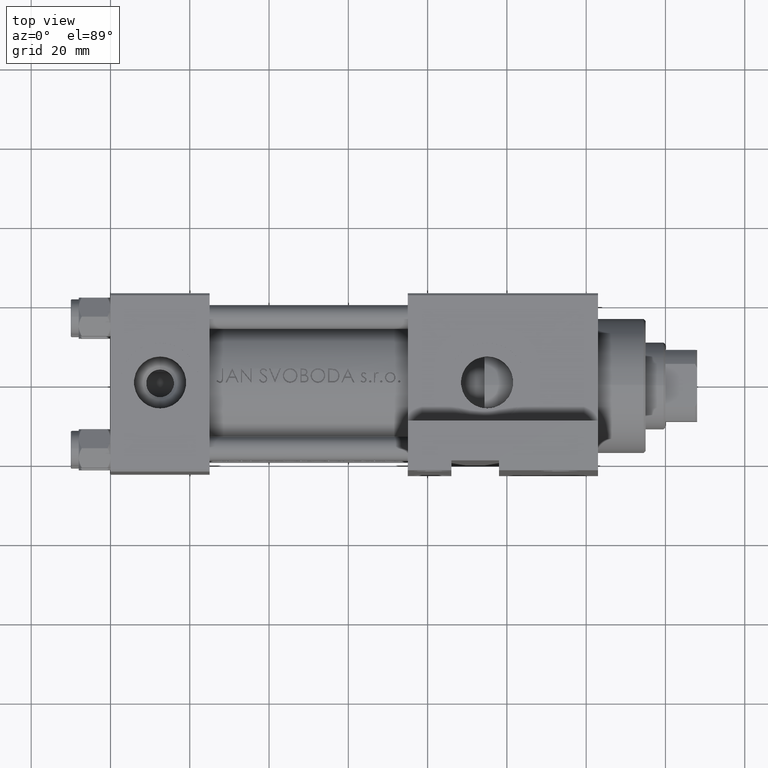
[diagram: clean part render]
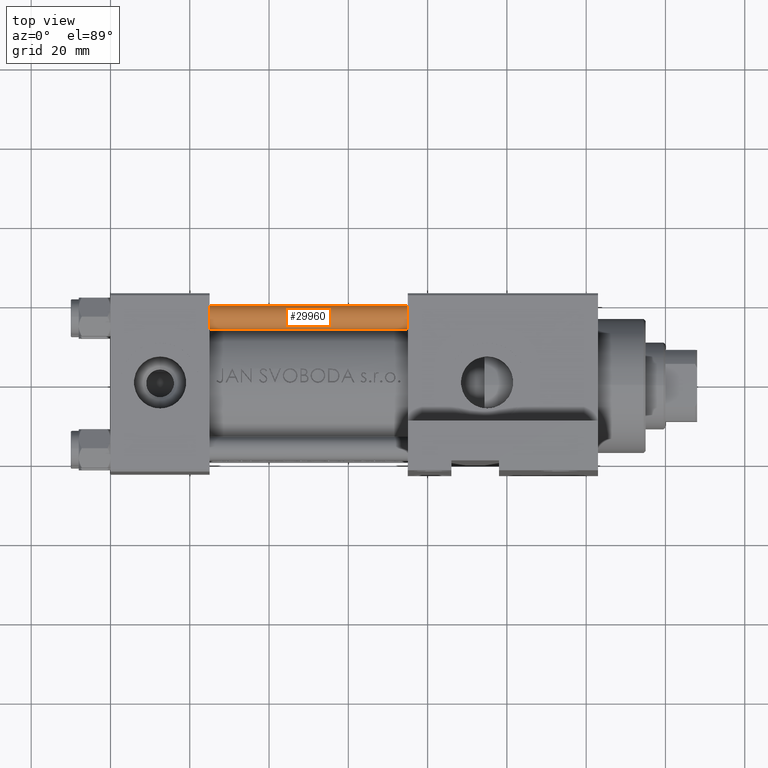
[diagram: same view with one face highlighted and labeled with its STEP entity id]
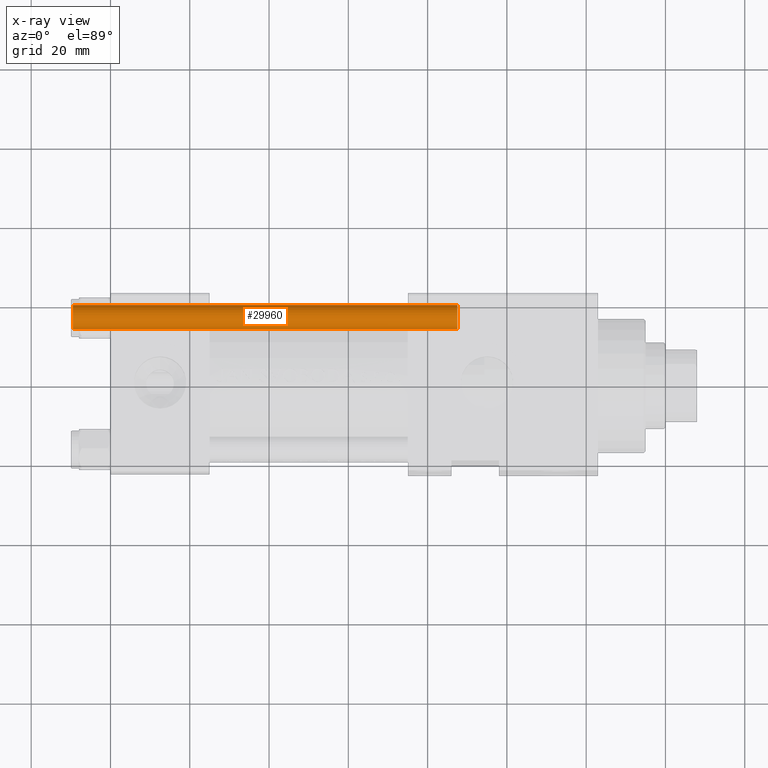
[diagram: x-ray of the same camera — body ghosted, the highlighted face saturated]
A machine part, top view. The second image highlights one B-rep face of the part: STEP entity #29960.
The next image is the same camera in x-ray: the body ghosted, the highlighted face saturated — about 0% of this face is hidden behind the body in this view.
In plain terms, the highlighted cylindrical surface (edge-blend (fillet) strip) has radius 3 mm, axis along (1, -0, 0).
Its self-contained STEP definition (entity closure, byte-faithful):
#332 = FACE_OUTER_BOUND ( 'NONE', #4332, .T. ) ;
#2021 = CARTESIAN_POINT ( 'NONE',  ( 0.000000000000000000, 0.000000000000000000, 0.5000000000000281997 ) ) ;
#2649 = CARTESIAN_POINT ( 'NONE',  ( -3.000000000000000444, 0.000000000000000000, 0.5000000000000281997 ) ) ;
#2966 = AXIS2_PLACEMENT_3D ( 'NONE', #33829, #44460, #29721 ) ;
#3233 = DIRECTION ( 'NONE',  ( 0.000000000000000000, 0.000000000000000000, -1.000000000000000000 ) ) ;
#3348 = CARTESIAN_POINT ( 'NONE',  ( -3.000000000000000444, 0.000000000000000000, 98.00000000000000000 ) ) ;
#3820 = CIRCLE ( 'NONE', #7653, 3.000000000000000444 ) ;
#4332 = EDGE_LOOP ( 'NONE', ( #13790, #13645, #45470, #42976 ) ) ;
#5930 = CARTESIAN_POINT ( 'NONE',  ( 3.000000000000000444, 3.673940397442060361E-16, 98.00000000000000000 ) ) ;
#5991 = CARTESIAN_POINT ( 'NONE',  ( 3.000000000000000444, 3.673940397442060361E-16, 97.50000000000001421 ) ) ;
#7653 = AXIS2_PLACEMENT_3D ( 'NONE', #2021, #15771, #9244 ) ;
#8809 = CARTESIAN_POINT ( 'NONE',  ( 3.000000000000000444, 3.673940397442060361E-16, 0.5000000000000281997 ) ) ;
#9244 = DIRECTION ( 'NONE',  ( 1.000000000000000000, 0.000000000000000000, 0.000000000000000000 ) ) ;
#9432 = EDGE_CURVE ( 'NONE', #23874, #19540, #3820, .T. ) ;
#13577 = VERTEX_POINT ( 'NONE', #18100 ) ;
#13645 = ORIENTED_EDGE ( 'NONE', *, *, #43698, .T. ) ;
#13790 = ORIENTED_EDGE ( 'NONE', *, *, #44628, .F. ) ;
#14953 = VERTEX_POINT ( 'NONE', #5991 ) ;
#15022 = CYLINDRICAL_SURFACE ( 'NONE', #2966, 3.000000000000000444 ) ;
#15771 = DIRECTION ( 'NONE',  ( -0.000000000000000000, -0.000000000000000000, 1.000000000000000000 ) ) ;
#18100 = CARTESIAN_POINT ( 'NONE',  ( -3.000000000000000444, 0.000000000000000000, 97.50000000000001421 ) ) ;
#19540 = VERTEX_POINT ( 'NONE', #8809 ) ;
#23874 = VERTEX_POINT ( 'NONE', #2649 ) ;
#24475 = LINE ( 'NONE', #5930, #27161 ) ;
#25631 = CIRCLE ( 'NONE', #38738, 3.000000000000000444 ) ;
#27161 = VECTOR ( 'NONE', #43543, 1000.000000000000000 ) ;
#28750 = VECTOR ( 'NONE', #32741, 1000.000000000000000 ) ;
#29721 = DIRECTION ( 'NONE',  ( -1.000000000000000000, 0.000000000000000000, 0.000000000000000000 ) ) ;
#29960 = ADVANCED_FACE ( 'NONE', ( #332 ), #15022, .T. ) ;
#32741 = DIRECTION ( 'NONE',  ( -0.000000000000000000, -0.000000000000000000, -1.000000000000000000 ) ) ;
#33829 = CARTESIAN_POINT ( 'NONE',  ( 0.000000000000000000, 0.000000000000000000, 98.00000000000000000 ) ) ;
#38738 = AXIS2_PLACEMENT_3D ( 'NONE', #44231, #3233, #41077 ) ;
#41077 = DIRECTION ( 'NONE',  ( 1.000000000000000000, 0.000000000000000000, 0.000000000000000000 ) ) ;
#42976 = ORIENTED_EDGE ( 'NONE', *, *, #9432, .T. ) ;
#43543 = DIRECTION ( 'NONE',  ( -0.000000000000000000, -0.000000000000000000, -1.000000000000000000 ) ) ;
#43698 = EDGE_CURVE ( 'NONE', #14953, #13577, #25631, .T. ) ;
#44101 = LINE ( 'NONE', #3348, #28750 ) ;
#44231 = CARTESIAN_POINT ( 'NONE',  ( 0.000000000000000000, 0.000000000000000000, 97.50000000000001421 ) ) ;
#44460 = DIRECTION ( 'NONE',  ( -0.000000000000000000, -0.000000000000000000, -1.000000000000000000 ) ) ;
#44628 = EDGE_CURVE ( 'NONE', #14953, #19540, #24475, .T. ) ;
#45470 = ORIENTED_EDGE ( 'NONE', *, *, #46490, .T. ) ;
#46490 = EDGE_CURVE ( 'NONE', #13577, #23874, #44101, .T. ) ;